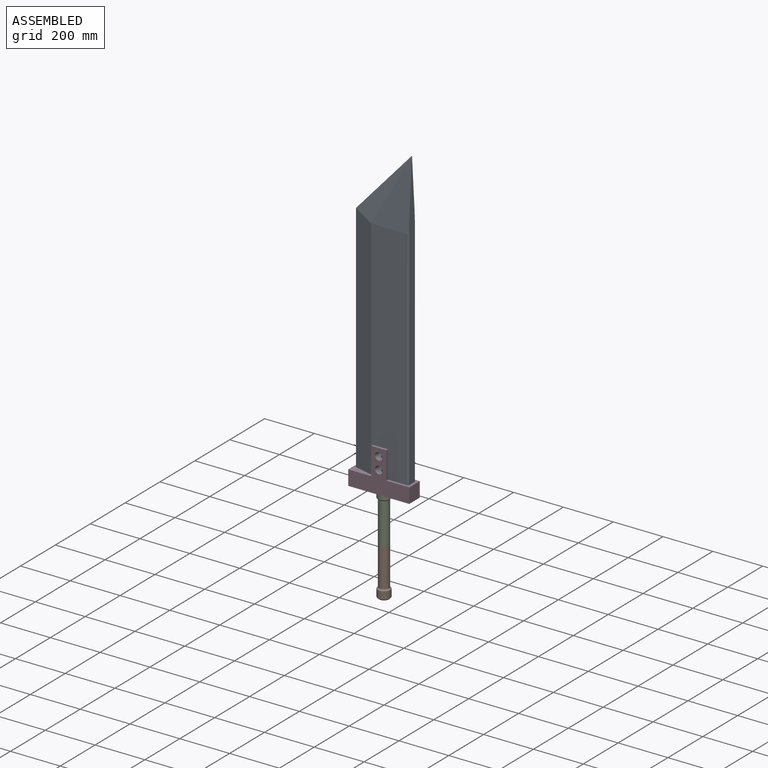
[diagram: assembled view]
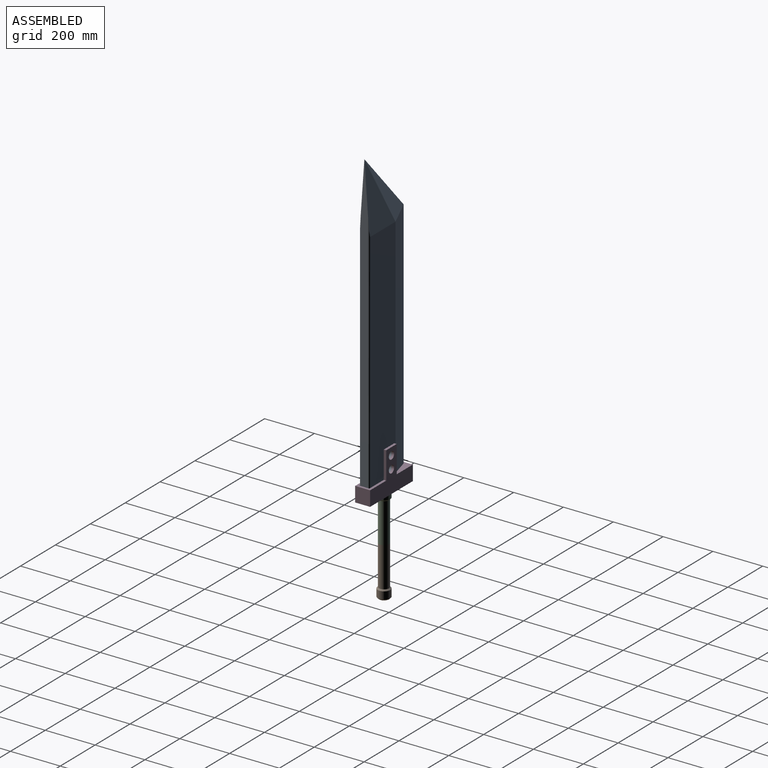
[diagram: assembled view, second angle]
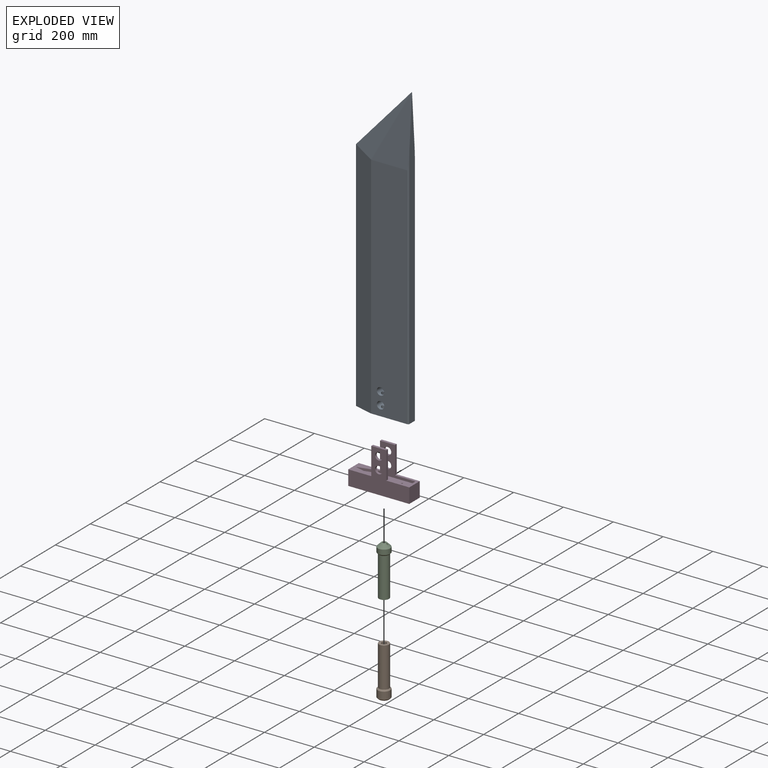
[diagram: exploded view]
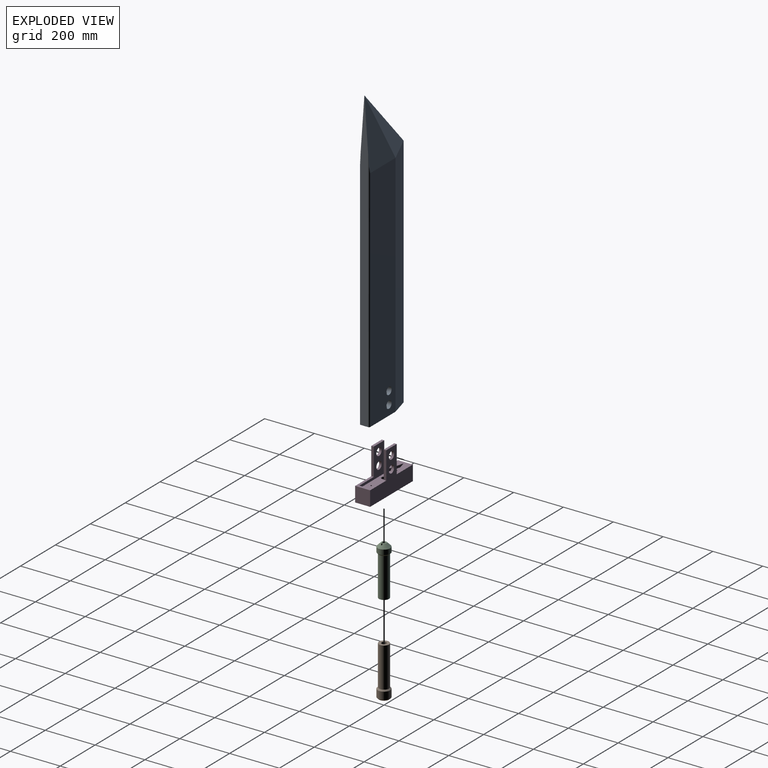
[diagram: exploded view, second angle]
ASSEMBLY  parts=4 mates=3
PART A: 22 faces, bbox 225x40x1200 mm
  f0: plane 1200x30mm, normal (1,0,0), area 32863.5mm2, adj f5,f6,f7,f12,f13
  f1: plane 921.2x145mm, normal (0,-1,0), area 132160.3mm2, adj f5,f7,f8,f10,f11,f12
  f2: plane 278.78x225mm, normal (-0.19,-0.97,0.17), area 13052.5mm2, adj f4,f7,f8
  f3: plane 921.2x145mm, normal (0,1,0), area 132160.3mm2, adj f5,f6,f9,f10,f11,f13
  f4: plane 278.78x225mm, normal (-0.19,0.97,0.17), area 13052.5mm2, adj f2,f6,f9
  f5: plane 225x40mm, normal (0,0,-1), area 7118.6mm2, adj f0,f1,f3,f8,f9,f12,f13,f14
  f6: plane 278.8x150.01mm, normal (0,1,0.07), area 20891.2mm2, adj f0,f3,f4,f9,f13
  f7: plane 278.8x150.01mm, normal (0,-1,0.07), area 20891.2mm2, adj f0,f1,f2,f8,f12
  f8: plane 950x75mm, normal (-0.26,-0.97,0), area 72622.9mm2, adj f1,f2,f5,f7,f9
  f9: plane 950x75mm, normal (-0.26,0.97,0), area 72622.9mm2, adj f3,f4,f5,f6,f8
  f10: cylinder r=15mm len=40mm, axis (0,-1,0), area 3099.1mm2, adj f1,f3,f17,f18
  f11: cylinder r=15mm len=40mm, axis (0,-1,0), area 3099.1mm2, adj f1,f3,f16,f17
  f12: cylinder r=5mm len=990.9mm, axis (0,0,1), area 7434mm2, adj f0,f1,f5,f7
  f13: cylinder r=5mm len=990.9mm, axis (0,0,-1), area 7434mm2, adj f0,f3,f5,f6
  f14: cylinder r=3mm len=960mm, axis (0,0,-1), area 18095.6mm2, adj f5,f19
  f15: cylinder r=3mm len=960mm, axis (0,0,-1), area 18095.6mm2, adj f5,f20
  f16: cylinder r=10mm len=548.82mm, axis (0,0,-1), area 34359.1mm2, adj f11,f21
  f17: cylinder r=10mm len=27.64mm, axis (0,0,-1), area 1487.9mm2, adj f10,f11
  f18: cylinder r=10mm len=28.82mm, axis (0,0,-1), area 1686.4mm2, adj f5,f10
  f19: cone r=3mm half-angle=45deg, axis (0,0,-1), area 40mm2, adj f14
  f20: cone r=3mm half-angle=45deg, axis (0,0,-1), area 40mm2, adj f15
  f21: cone r=10mm half-angle=45deg, axis (0,0,-1), area 444.3mm2, adj f16
PART B: 8 faces, bbox 50x50x200 mm
  f0: cylinder r=20mm len=160mm, axis (0,0,-1), area 20106.2mm2, adj f1,f4
  f1: plane 40x40mm, normal (0,0,-1), area 942.5mm2, adj f0,f6
  f2: cylinder r=25mm len=50mm, axis (0,0,-1), area 4712.4mm2, adj f4,f5
  f3: plane 40x40mm, normal (0,0,1), area 1256.6mm2, adj f5
  f4: cone r=25mm half-angle=45deg, axis (0,0,1), area 999.6mm2, adj f0,f2
  f5: cone r=20mm half-angle=45deg, axis (0,0,-1), area 999.6mm2, adj f2,f3
  f6: cylinder r=10mm len=115mm, axis (0,0,-1), area 7225.7mm2, adj f1,f7
  f7: plane 20x20mm, normal (0,0,-1), area 314.2mm2, adj f6
PART C: 9 faces, bbox 50x50x200 mm
  f0: cylinder r=3mm len=200mm, axis (0,0,-1), area 3725.8mm2, adj f4,f6,f8
  f1: cylinder r=3mm len=200mm, axis (0,0,-1), area 3725.7mm2, adj f4,f6,f8
  f2: cylinder r=6mm len=200mm, axis (0,0,-1), area 7539.8mm2, adj f4,f6
  f3: cylinder r=20mm len=160mm, axis (0,0,-1), area 20106.2mm2, adj f4,f7
  f4: plane 40x40mm, normal (0,0,-1), area 1087mm2, adj f0,f1,f2,f3
  f5: cylinder r=25mm len=50mm, axis (0,0,-1), area 3141.6mm2, adj f7,f8
  f6: plane 20x19.58mm, normal (0,0,1), area 195.5mm2, adj f0,f1,f2,f8
  f7: cone r=25mm half-angle=45deg, axis (0,0,1), area 999.6mm2, adj f3,f5
  f8: cone r=10mm half-angle=45deg, axis (0,0,-1), area 2260.4mm2, adj f0,f1,f5,f6
PART D: 29 faces, bbox 245x60x170 mm
  f0: plane 92.5x60mm, normal (0,0,1), area 2250mm2, adj f3,f5,f6,f10,f11,f12,f19,f22
  f1: plane 92.5x60mm, normal (0,0,1), area 3750mm2, adj f3,f4,f5,f8,f9,f10,f12,f20
  f2: cylinder r=10mm len=35mm, axis (0,0,1), area 2199.1mm2, adj f13,f18
  f3: plane 245x170mm, normal (0,1,0), area 19886.3mm2, adj f0,f1,f4,f6,f7,f22,f23,f24
  f4: plane 60x60mm, normal (-1,0,0), area 3600mm2, adj f1,f3,f5,f7
  f5: plane 245x170mm, normal (0,-1,0), area 19886.3mm2, adj f0,f1,f4,f6,f7,f19,f20,f21
  f6: plane 60x60mm, normal (1,0,0), area 3600mm2, adj f0,f3,f5,f7
  f7: plane 245x60mm, normal (0,0,-1), area 12736.5mm2, adj f3,f4,f5,f6,f18
  f8: plane 75x20mm, normal (0.26,-0.97,0), area 776.2mm2, adj f1,f9,f12,f13
  f9: plane 75x20mm, normal (0.26,0.97,0), area 776.2mm2, adj f1,f8,f10,f13
  f10: plane 150x120mm, normal (0,1,0), area 6686.3mm2, adj f0,f1,f9,f11,f13,f19,f20,f21
  f11: plane 40x10mm, normal (-1,0,0), area 400mm2, adj f0,f10,f12,f13
  f12: plane 150x120mm, normal (0,-1,0), area 6686.3mm2, adj f0,f1,f8,f11,f13,f22,f23,f24
  f13: plane 225x40mm, normal (0,0,1), area 7129.3mm2, adj f2,f8,f9,f10,f11,f12,f14,f16
  f14: cylinder r=3mm len=40mm, axis (0,0,1), area 754mm2, adj f13,f15
  f15: plane 6x6mm, normal (0,0,1), area 28.3mm2, adj f14
  f16: cylinder r=3mm len=40mm, axis (0,0,1), area 754mm2, adj f13,f17
  f17: plane 6x6mm, normal (0,0,1), area 28.3mm2, adj f16
  f18: cone r=10mm half-angle=45deg, axis (0,0,-1), area 2332.5mm2, adj f2,f7
  f19: plane 110x10mm, normal (1,0,0), area 1100mm2, adj f0,f5,f10,f21
  f20: plane 110x10mm, normal (-1,0,0), area 1100mm2, adj f1,f5,f10,f21
  f21: plane 60x10mm, normal (0,0,1), area 600mm2, adj f5,f10,f19,f20
  f22: plane 110x10mm, normal (1,0,0), area 1100mm2, adj f0,f3,f12,f24
  f23: plane 110x10mm, normal (-1,0,0), area 1100mm2, adj f1,f3,f12,f24
  f24: plane 60x10mm, normal (0,0,1), area 600mm2, adj f3,f12,f22,f23
  f25: cylinder r=15mm len=30mm, axis (0,-1,0), area 942.5mm2, adj f3,f12
  f26: cylinder r=15mm len=30mm, axis (0,-1,0), area 942.5mm2, adj f3,f12
  f27: cylinder r=15mm len=30mm, axis (0,-1,0), area 942.5mm2, adj f5,f10
  f28: cylinder r=15mm len=30mm, axis (0,-1,0), area 942.5mm2, adj f5,f10
PLACE A t=(0,0,50)mm
PLACE B rot(axis=(0,1,0),180deg) t=(0,0,-185)mm
PLACE C t=(0,0,-185)mm
PLACE D at identity
MATE fastened B.f0 <-> C.f3  axis (0,0,1) through (0,0,-185)mm
MATE fastened A.f5 <-> D.f13  axis (0,0,-1) through (112.5,0,50)mm
MATE fastened C.f5 <-> D.f18  axis (0,0,-1) through (0,0,0)mm
